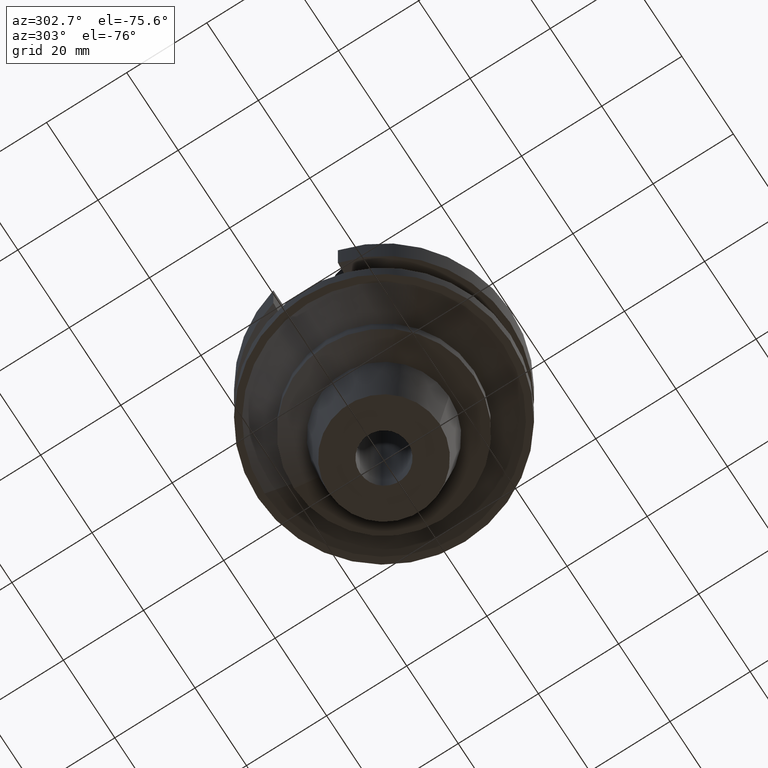
[diagram: clean part render]
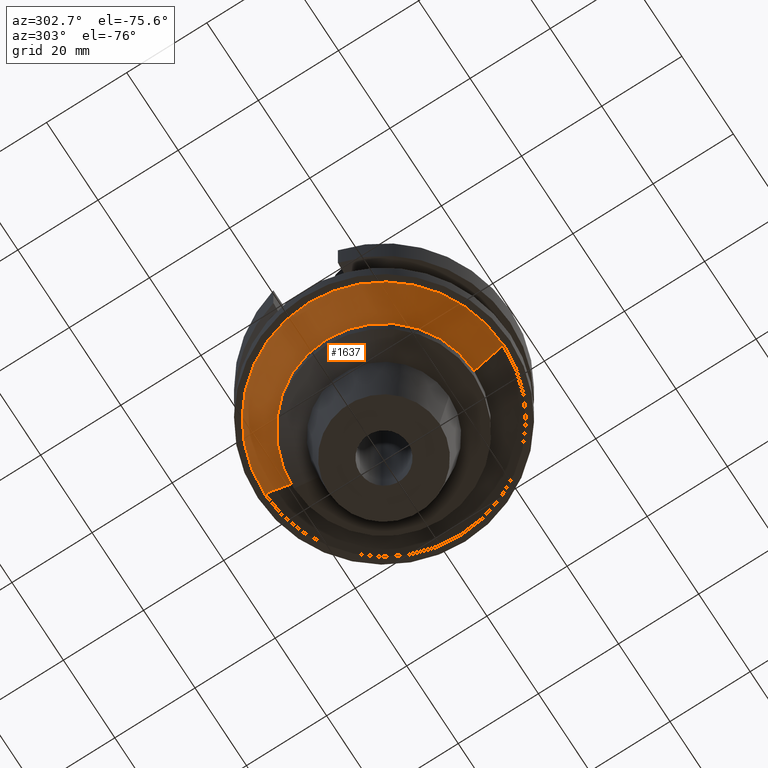
[diagram: same view with one face highlighted and labeled with its STEP entity id]
A machine part, auxiliary view. The second image highlights one B-rep face of the part: STEP entity #1637.
In plain terms, the highlighted conical surface has half-angle 48.3 deg.
Its self-contained STEP definition (entity closure, byte-faithful):
#647=CARTESIAN_POINT('',(0.E0,0.E0,-2.7E1));
#648=DIRECTION('',(0.E0,0.E0,-1.E0));
#649=DIRECTION('',(0.E0,-1.E0,0.E0));
#650=AXIS2_PLACEMENT_3D('',#647,#648,#649);
#663=DIRECTION('',(0.E0,7.466381822854E-1,-6.652303546544E-1));
#664=VECTOR('',#663,9.771051417784E0);
#665=CARTESIAN_POINT('',(0.E0,-2.979544006959E1,-2.7E1));
#666=LINE('',#665,#664);
#670=CARTESIAN_POINT('',(0.E0,0.E0,-3.35E1));
#671=DIRECTION('',(0.E0,0.E0,-1.E0));
#672=DIRECTION('',(0.E0,-1.E0,0.E0));
#673=AXIS2_PLACEMENT_3D('',#670,#671,#672);
#678=DIRECTION('',(0.E0,-7.466381822854E-1,-6.652303546544E-1));
#679=VECTOR('',#678,9.771051417784E0);
#680=CARTESIAN_POINT('',(0.E0,2.979544006959E1,-2.7E1));
#681=LINE('',#680,#679);
#1087=CARTESIAN_POINT('',(0.E0,2.25E1,-3.35E1));
#1088=VERTEX_POINT('',#1087);
#1089=CARTESIAN_POINT('',(0.E0,-2.25E1,-3.35E1));
#1090=VERTEX_POINT('',#1089);
#1091=CARTESIAN_POINT('',(0.E0,2.979544006959E1,-2.7E1));
#1092=VERTEX_POINT('',#1091);
#1093=CARTESIAN_POINT('',(0.E0,-2.979544006959E1,-2.7E1));
#1094=VERTEX_POINT('',#1093);
#1623=CARTESIAN_POINT('',(0.E0,0.E0,-3.025E1));
#1624=DIRECTION('',(0.E0,0.E0,1.E0));
#1625=DIRECTION('',(0.E0,1.E0,0.E0));
#1626=AXIS2_PLACEMENT_3D('',#1623,#1624,#1625);
#1627=CONICAL_SURFACE('',#1626,2.614772003480E1,4.83E1);
#1629=ORIENTED_EDGE('',*,*,#1628,.F.);
#1630=ORIENTED_EDGE('',*,*,#1616,.F.);
#1632=ORIENTED_EDGE('',*,*,#1631,.T.);
#1634=ORIENTED_EDGE('',*,*,#1633,.T.);
#1635=EDGE_LOOP('',(#1629,#1630,#1632,#1634));
#1636=FACE_OUTER_BOUND('',#1635,.F.);
#651=CIRCLE('',#650,2.979544006959E1);
#674=CIRCLE('',#673,2.25E1);
#1616=EDGE_CURVE('',#1094,#1092,#651,.T.);
#1628=EDGE_CURVE('',#1092,#1088,#681,.T.);
#1631=EDGE_CURVE('',#1094,#1090,#666,.T.);
#1633=EDGE_CURVE('',#1090,#1088,#674,.T.);
#1637=ADVANCED_FACE('',(#1636),#1627,.T.);